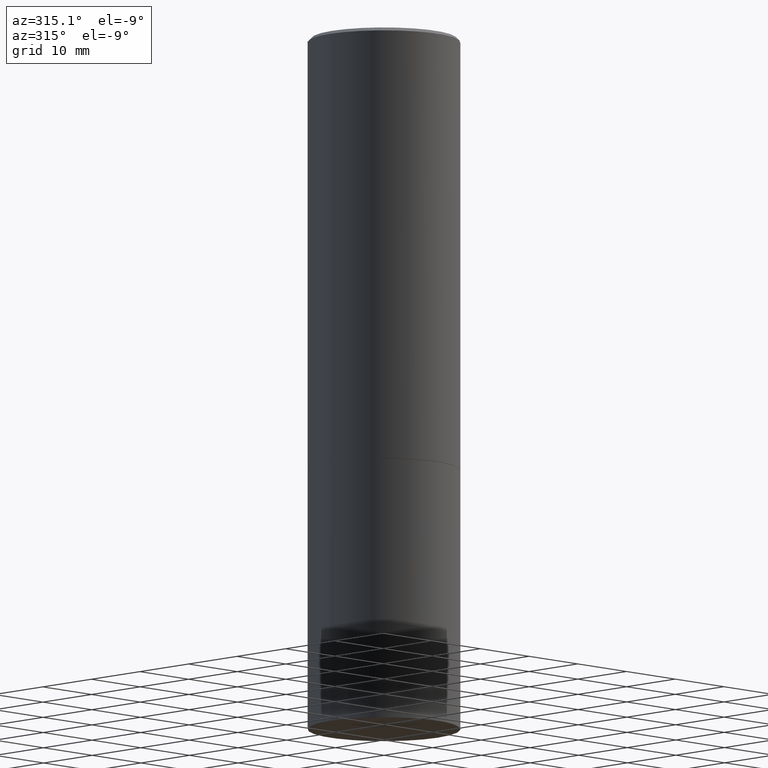
[diagram: clean part render]
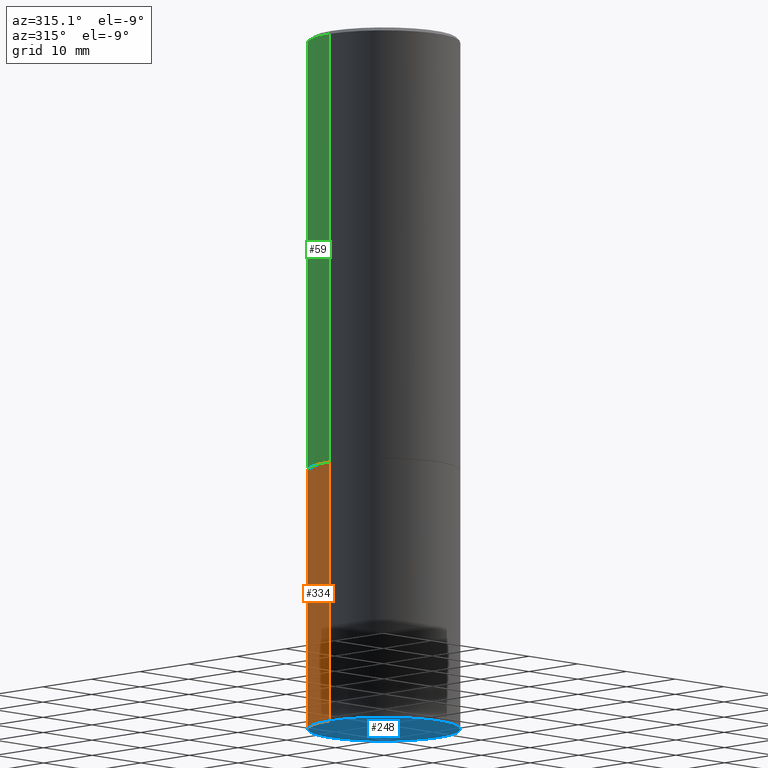
[diagram: same view with three faces highlighted in distinct colors, each labeled with its STEP entity id]
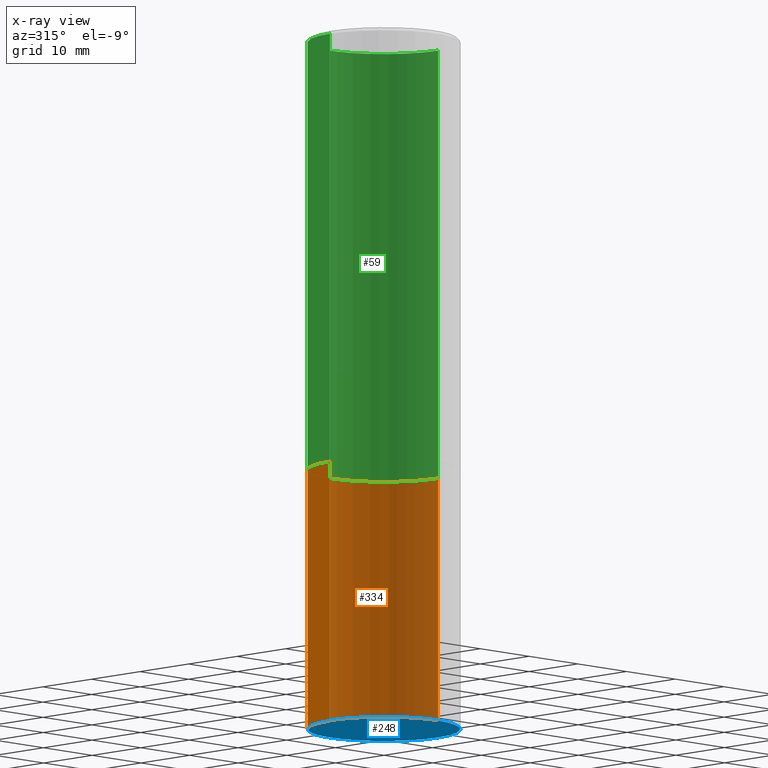
[diagram: x-ray of the same camera — body ghosted, the three highlighted faces saturated]
A machine part, auxiliary view with three faces highlighted in distinct colors.
The next image is the same camera in x-ray (body ghosted, the three faces saturated) — at least one of them is partly hidden behind the body in this view.
Their STEP definitions:

[orange] entity #334 — the highlighted cylindrical surface (partial cylindrical patch) has radius 11.1125 mm, axis along (-0, 0, 1).
#18 = EDGE_CURVE ( 'NONE', #146, #121, #326, .T. ) ;
#39 = DIRECTION ( 'NONE',  ( -2.445468806185136597E-29, 3.491481338843145583E-15, 1.000000000000000000 ) ) ;
#55 = AXIS2_PLACEMENT_3D ( 'NONE', #253, #364, #108 ) ;
#70 = CARTESIAN_POINT ( 'NONE',  ( 0.4375000000000000000, -3.055046171487741686E-15, 2.133327339410721769E-29 ) ) ;
#71 = DIRECTION ( 'NONE',  ( 1.000000000000000000, -6.982962677686267499E-15, 0.000000000000000000 ) ) ;
#73 = CARTESIAN_POINT ( 'NONE',  ( 0.4375000000000000000, -1.702097152686032402E-14, -4.000000000000000000 ) ) ;
#78 = EDGE_CURVE ( 'NONE', #138, #311, #204, .T. ) ;
#87 = EDGE_CURVE ( 'NONE', #138, #146, #242, .T. ) ;
#94 = DIRECTION ( 'NONE',  ( 1.000000000000000000, -6.982962677686265133E-15, 0.000000000000000000 ) ) ;
#97 = DIRECTION ( 'NONE',  ( -2.445468806185136877E-29, 3.491481338843145188E-15, 1.000000000000000000 ) ) ;
#108 = DIRECTION ( 'NONE',  ( 1.000000000000000000, -6.982962677686266711E-15, 4.876176775795935232E-29 ) ) ;
#114 = CARTESIAN_POINT ( 'NONE',  ( 6.113672015462842613E-29, -8.728703347107864943E-15, -2.500000000000000000 ) ) ;
#121 = VERTEX_POINT ( 'NONE', #212 ) ;
#122 = EDGE_CURVE ( 'NONE', #311, #121, #181, .T. ) ;
#127 = CARTESIAN_POINT ( 'NONE',  ( 9.781875224740546387E-29, -1.396592535537258233E-14, -4.000000000000000000 ) ) ;
#131 = AXIS2_PLACEMENT_3D ( 'NONE', #127, #328, #71 ) ;
#138 = VERTEX_POINT ( 'NONE', #73 ) ;
#146 = VERTEX_POINT ( 'NONE', #186 ) ;
#151 = CARTESIAN_POINT ( 'NONE',  ( -0.4375000000000000000, 3.108624468950438313E-15, -2.152034101986521245E-29 ) ) ;
#161 = CARTESIAN_POINT ( 'NONE',  ( -0.4375000000000000000, -8.238689882289784535E-15, -4.000000000000000000 ) ) ;
#177 = ORIENTED_EDGE ( 'NONE', *, *, #78, .T. ) ;
#181 = LINE ( 'NONE', #151, #217 ) ;
#186 = CARTESIAN_POINT ( 'NONE',  ( 0.4375000000000000000, -1.178374951859560505E-14, -2.500000000000000000 ) ) ;
#198 = ORIENTED_EDGE ( 'NONE', *, *, #87, .F. ) ;
#204 = CIRCLE ( 'NONE', #131, 0.4375000000000000000 ) ;
#208 = ORIENTED_EDGE ( 'NONE', *, *, #122, .T. ) ;
#212 = CARTESIAN_POINT ( 'NONE',  ( -0.4375000000000000000, -8.238689882289784535E-15, -2.500000000000000000 ) ) ;
#217 = VECTOR ( 'NONE', #271, 39.37007874015748143 ) ;
#222 = FACE_OUTER_BOUND ( 'NONE', #289, .T. ) ;
#242 = LINE ( 'NONE', #70, #251 ) ;
#251 = VECTOR ( 'NONE', #97, 39.37007874015748143 ) ;
#253 = CARTESIAN_POINT ( 'NONE',  ( 0.000000000000000000, 0.000000000000000000, 0.000000000000000000 ) ) ;
#271 = DIRECTION ( 'NONE',  ( -2.445468806185136877E-29, 3.491481338843145188E-15, 1.000000000000000000 ) ) ;
#289 = EDGE_LOOP ( 'NONE', ( #177, #208, #319, #198 ) ) ;
#308 = CYLINDRICAL_SURFACE ( 'NONE', #55, 0.4375000000000000000 ) ;
#311 = VERTEX_POINT ( 'NONE', #161 ) ;
#317 = AXIS2_PLACEMENT_3D ( 'NONE', #114, #39, #94 ) ;
#319 = ORIENTED_EDGE ( 'NONE', *, *, #18, .F. ) ;
#326 = CIRCLE ( 'NONE', #317, 0.4375000000000000000 ) ;
#328 = DIRECTION ( 'NONE',  ( -2.445468806185136597E-29, 3.491481338843145583E-15, 1.000000000000000000 ) ) ;
#334 = ADVANCED_FACE ( 'NONE', ( #222 ), #308, .T. ) ;
#364 = DIRECTION ( 'NONE',  ( -2.445468806185136597E-29, 3.491481338843145583E-15, 1.000000000000000000 ) ) ;

[blue] entity #248 — the highlighted planar face has unit normal (0, -0, -1).
#1 = DIRECTION ( 'NONE',  ( 1.000000000000000000, -6.982962677686267499E-15, 0.000000000000000000 ) ) ;
#6 = ORIENTED_EDGE ( 'NONE', *, *, #13, .F. ) ;
#13 = EDGE_CURVE ( 'NONE', #311, #138, #90, .T. ) ;
#28 = ORIENTED_EDGE ( 'NONE', *, *, #78, .F. ) ;
#42 = AXIS2_PLACEMENT_3D ( 'NONE', #64, #137, #1 ) ;
#49 = DIRECTION ( 'NONE',  ( 2.438088387897960049E-29, -3.491481338843145188E-15, -1.000000000000000000 ) ) ;
#64 = CARTESIAN_POINT ( 'NONE',  ( 9.781875224740546387E-29, -1.396592535537258233E-14, -4.000000000000000000 ) ) ;
#71 = DIRECTION ( 'NONE',  ( 1.000000000000000000, -6.982962677686267499E-15, 0.000000000000000000 ) ) ;
#73 = CARTESIAN_POINT ( 'NONE',  ( 0.4375000000000000000, -1.702097152686032402E-14, -4.000000000000000000 ) ) ;
#78 = EDGE_CURVE ( 'NONE', #138, #311, #204, .T. ) ;
#90 = CIRCLE ( 'NONE', #42, 0.4375000000000000000 ) ;
#127 = CARTESIAN_POINT ( 'NONE',  ( 9.781875224740546387E-29, -1.396592535537258233E-14, -4.000000000000000000 ) ) ;
#131 = AXIS2_PLACEMENT_3D ( 'NONE', #127, #328, #71 ) ;
#133 = CARTESIAN_POINT ( 'NONE',  ( 3.055046171487839110E-15, 0.4374999999999860667, -4.000000000000001776 ) ) ;
#137 = DIRECTION ( 'NONE',  ( -2.445468806185136597E-29, 3.491481338843145583E-15, 1.000000000000000000 ) ) ;
#138 = VERTEX_POINT ( 'NONE', #73 ) ;
#158 = DIRECTION ( 'NONE',  ( -1.000000000000000000, 6.982962677686265922E-15, -4.876176775795935793E-29 ) ) ;
#161 = CARTESIAN_POINT ( 'NONE',  ( -0.4375000000000000000, -8.238689882289784535E-15, -4.000000000000000000 ) ) ;
#196 = AXIS2_PLACEMENT_3D ( 'NONE', #133, #49, #158 ) ;
#204 = CIRCLE ( 'NONE', #131, 0.4375000000000000000 ) ;
#207 = EDGE_LOOP ( 'NONE', ( #28, #6 ) ) ;
#243 = PLANE ( 'NONE',  #196 ) ;
#248 = ADVANCED_FACE ( 'NONE', ( #305 ), #243, .T. ) ;
#305 = FACE_OUTER_BOUND ( 'NONE', #207, .T. ) ;
#311 = VERTEX_POINT ( 'NONE', #161 ) ;
#328 = DIRECTION ( 'NONE',  ( -2.445468806185136597E-29, 3.491481338843145583E-15, 1.000000000000000000 ) ) ;

[green] entity #59 — the highlighted cylindrical surface (partial cylindrical patch) has radius 11.1125 mm, axis along (-0, 0, 1).
#10 = AXIS2_PLACEMENT_3D ( 'NONE', #351, #123, #325 ) ;
#53 = CIRCLE ( 'NONE', #269, 0.4374999999999997224 ) ;
#59 = ADVANCED_FACE ( 'NONE', ( #152 ), #277, .T. ) ;
#68 = VECTOR ( 'NONE', #125, 39.37007874015748143 ) ;
#77 = DIRECTION ( 'NONE',  ( 1.000000000000000000, -6.982962677686267499E-15, 0.000000000000000000 ) ) ;
#79 = CARTESIAN_POINT ( 'NONE',  ( 0.4374999999999997780, -3.055046171487740108E-15, 2.133327339410720928E-29 ) ) ;
#82 = CARTESIAN_POINT ( 'NONE',  ( 0.4374999999999997224, -3.071297500801906385E-15, -0.02000000000000009756 ) ) ;
#91 = VERTEX_POINT ( 'NONE', #126 ) ;
#123 = DIRECTION ( 'NONE',  ( -2.445468806185136597E-29, 3.491481338843145583E-15, 1.000000000000000000 ) ) ;
#125 = DIRECTION ( 'NONE',  ( -2.445468806185136877E-29, 3.491481338843145188E-15, 1.000000000000000000 ) ) ;
#126 = CARTESIAN_POINT ( 'NONE',  ( 0.4374999999999998335, -1.178025803725676362E-14, -2.499000000000000110 ) ) ;
#128 = EDGE_CURVE ( 'NONE', #287, #258, #53, .T. ) ;
#149 = LINE ( 'NONE', #272, #68 ) ;
#152 = FACE_OUTER_BOUND ( 'NONE', #228, .T. ) ;
#153 = AXIS2_PLACEMENT_3D ( 'NONE', #362, #357, #77 ) ;
#160 = EDGE_CURVE ( 'NONE', #200, #258, #149, .T. ) ;
#167 = ORIENTED_EDGE ( 'NONE', *, *, #187, .T. ) ;
#172 = VECTOR ( 'NONE', #191, 39.37007874015748143 ) ;
#182 = DIRECTION ( 'NONE',  ( -2.445468806185136597E-29, 3.491481338843145583E-15, 1.000000000000000000 ) ) ;
#187 = EDGE_CURVE ( 'NONE', #91, #200, #260, .T. ) ;
#191 = DIRECTION ( 'NONE',  ( -2.445468806185136877E-29, 3.491481338843145188E-15, 1.000000000000000000 ) ) ;
#192 = CARTESIAN_POINT ( 'NONE',  ( -0.4374999999999997224, 2.985216544710876416E-15, -0.02000000000000009756 ) ) ;
#200 = VERTEX_POINT ( 'NONE', #307 ) ;
#228 = EDGE_LOOP ( 'NONE', ( #167, #232, #316, #292 ) ) ;
#232 = ORIENTED_EDGE ( 'NONE', *, *, #160, .T. ) ;
#258 = VERTEX_POINT ( 'NONE', #192 ) ;
#260 = CIRCLE ( 'NONE', #153, 0.4374999999999998335 ) ;
#269 = AXIS2_PLACEMENT_3D ( 'NONE', #273, #182, #353 ) ;
#272 = CARTESIAN_POINT ( 'NONE',  ( -0.4374999999999997780, 3.108624468950436735E-15, -2.152034101986520123E-29 ) ) ;
#273 = CARTESIAN_POINT ( 'NONE',  ( 4.890937612370297681E-31, -6.982962677686324889E-17, -0.02000000000000009756 ) ) ;
#277 = CYLINDRICAL_SURFACE ( 'NONE', #10, 0.4374999999999997780 ) ;
#287 = VERTEX_POINT ( 'NONE', #82 ) ;
#292 = ORIENTED_EDGE ( 'NONE', *, *, #298, .F. ) ;
#298 = EDGE_CURVE ( 'NONE', #91, #287, #329, .T. ) ;
#307 = CARTESIAN_POINT ( 'NONE',  ( -0.4374999999999998335, -1.288896277322503515E-15, -2.499000000000000110 ) ) ;
#316 = ORIENTED_EDGE ( 'NONE', *, *, #128, .F. ) ;
#325 = DIRECTION ( 'NONE',  ( 1.000000000000000000, -6.982962677686266711E-15, 4.876176775795935793E-29 ) ) ;
#329 = LINE ( 'NONE', #79, #172 ) ;
#351 = CARTESIAN_POINT ( 'NONE',  ( 0.000000000000000000, 0.000000000000000000, 0.000000000000000000 ) ) ;
#353 = DIRECTION ( 'NONE',  ( 1.000000000000000000, -6.982962677686266711E-15, 0.000000000000000000 ) ) ;
#357 = DIRECTION ( 'NONE',  ( -2.445468806185136597E-29, 3.491481338843145583E-15, 1.000000000000000000 ) ) ;
#362 = CARTESIAN_POINT ( 'NONE',  ( 6.111226546656657010E-29, -8.725211865769021935E-15, -2.499000000000000110 ) ) ;